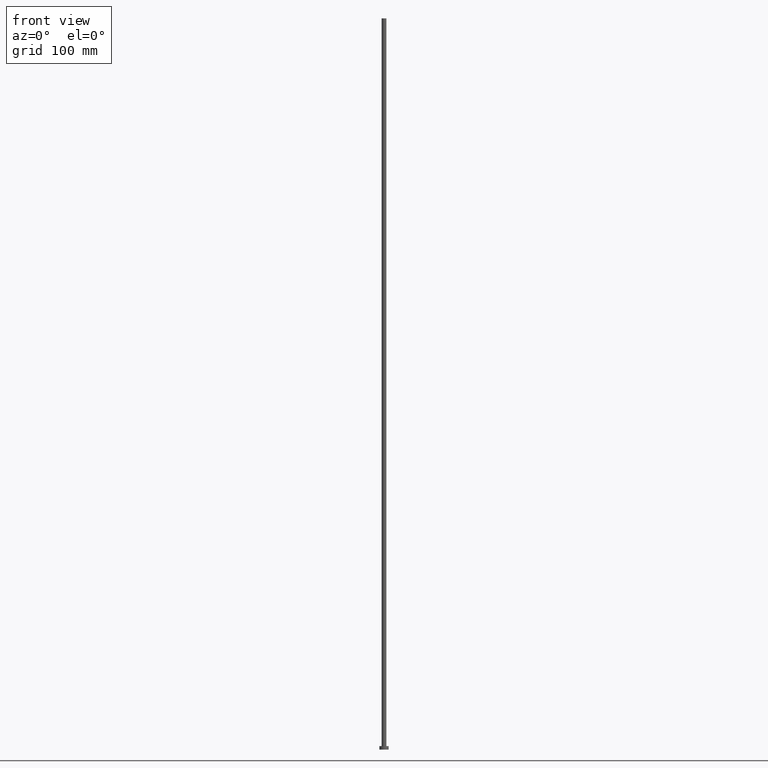
[diagram: clean part render]
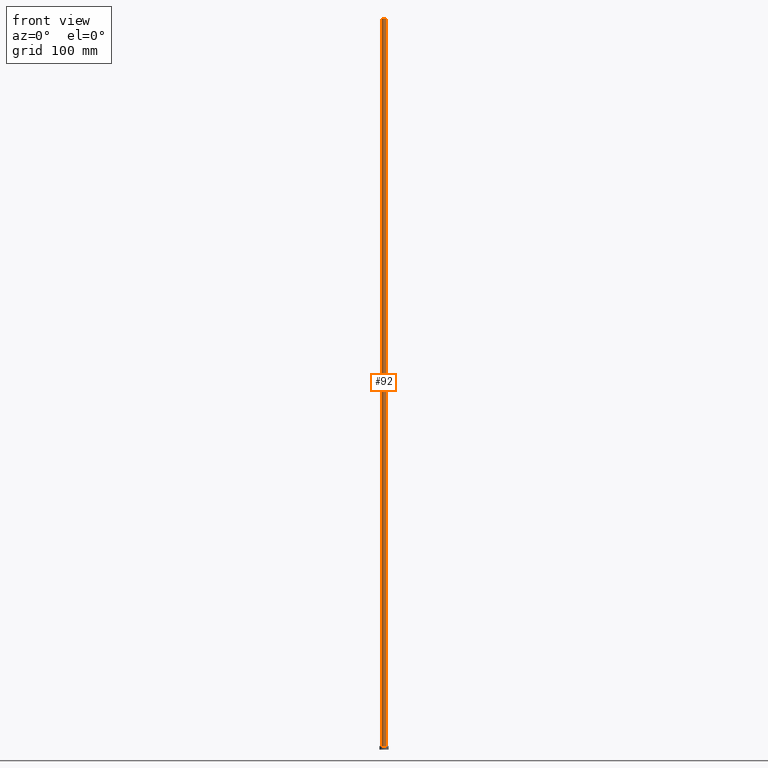
[diagram: same view with one face highlighted and labeled with its STEP entity id]
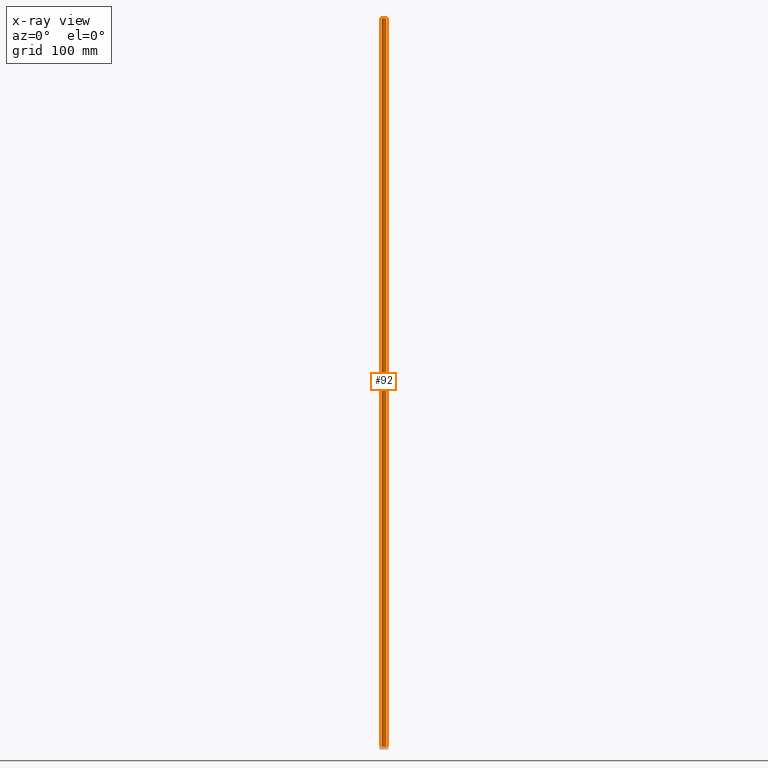
[diagram: x-ray of the same camera — body ghosted, the highlighted face saturated]
A machine part, front view. The second image highlights one B-rep face of the part: STEP entity #92.
The next image is the same camera in x-ray: the body ghosted, the highlighted face saturated — about 0% of this face is hidden behind the body in this view.
In plain terms, the highlighted cylindrical surface (edge-blend (fillet) strip) has radius 2 mm, axis along (-0, -0, -1).
Its self-contained STEP definition (entity closure, byte-faithful):
#7 = ORIENTED_EDGE ( 'NONE', *, *, #100, .T. ) ;
#11 = DIRECTION ( 'NONE',  ( -0.000000000000000000, -0.000000000000000000, -1.000000000000000000 ) ) ;
#16 = EDGE_CURVE ( 'NONE', #58, #156, #41, .T. ) ;
#22 = CIRCLE ( 'NONE', #186, 2.000000000000000000 ) ;
#33 = CARTESIAN_POINT ( 'NONE',  ( 0.000000000000000000, 0.000000000000000000, 630.0000000000000000 ) ) ;
#35 = CARTESIAN_POINT ( 'NONE',  ( 2.000000000000000000, 2.449293598294706414E-16, 630.0000000000000000 ) ) ;
#41 = CIRCLE ( 'NONE', #177, 2.000000000000000000 ) ;
#51 = CARTESIAN_POINT ( 'NONE',  ( -2.000000000000000000, 0.000000000000000000, 630.0000000000000000 ) ) ;
#58 = VERTEX_POINT ( 'NONE', #179 ) ;
#59 = DIRECTION ( 'NONE',  ( 1.000000000000000000, 0.000000000000000000, 0.000000000000000000 ) ) ;
#65 = DIRECTION ( 'NONE',  ( -1.000000000000000000, 0.000000000000000000, 0.000000000000000000 ) ) ;
#68 = CYLINDRICAL_SURFACE ( 'NONE', #231, 2.000000000000000000 ) ;
#91 = EDGE_CURVE ( 'NONE', #156, #97, #249, .T. ) ;
#92 = ADVANCED_FACE ( 'NONE', ( #103 ), #68, .T. ) ;
#97 = VERTEX_POINT ( 'NONE', #142 ) ;
#98 = VECTOR ( 'NONE', #101, 1000.000000000000000 ) ;
#100 = EDGE_CURVE ( 'NONE', #136, #97, #22, .T. ) ;
#101 = DIRECTION ( 'NONE',  ( -0.000000000000000000, -0.000000000000000000, -1.000000000000000000 ) ) ;
#103 = FACE_OUTER_BOUND ( 'NONE', #219, .T. ) ;
#105 = CARTESIAN_POINT ( 'NONE',  ( 2.000000000000000000, 2.449293598294706414E-16, 630.0000000000000000 ) ) ;
#111 = EDGE_CURVE ( 'NONE', #58, #136, #178, .T. ) ;
#136 = VERTEX_POINT ( 'NONE', #174 ) ;
#139 = DIRECTION ( 'NONE',  ( -0.000000000000000000, -0.000000000000000000, -1.000000000000000000 ) ) ;
#142 = CARTESIAN_POINT ( 'NONE',  ( 2.000000000000000000, 2.449293598294706414E-16, 3.000000000000000000 ) ) ;
#152 = CARTESIAN_POINT ( 'NONE',  ( 0.000000000000000000, 0.000000000000000000, 630.0000000000000000 ) ) ;
#156 = VERTEX_POINT ( 'NONE', #35 ) ;
#174 = CARTESIAN_POINT ( 'NONE',  ( -2.000000000000000000, 0.000000000000000000, 3.000000000000000000 ) ) ;
#177 = AXIS2_PLACEMENT_3D ( 'NONE', #152, #241, #59 ) ;
#178 = LINE ( 'NONE', #51, #98 ) ;
#179 = CARTESIAN_POINT ( 'NONE',  ( -2.000000000000000000, 0.000000000000000000, 630.0000000000000000 ) ) ;
#186 = AXIS2_PLACEMENT_3D ( 'NONE', #207, #228, #248 ) ;
#193 = ORIENTED_EDGE ( 'NONE', *, *, #91, .F. ) ;
#200 = ORIENTED_EDGE ( 'NONE', *, *, #111, .T. ) ;
#205 = VECTOR ( 'NONE', #139, 1000.000000000000000 ) ;
#207 = CARTESIAN_POINT ( 'NONE',  ( 0.000000000000000000, 0.000000000000000000, 3.000000000000000000 ) ) ;
#217 = ORIENTED_EDGE ( 'NONE', *, *, #16, .F. ) ;
#219 = EDGE_LOOP ( 'NONE', ( #193, #217, #200, #7 ) ) ;
#228 = DIRECTION ( 'NONE',  ( 0.000000000000000000, 0.000000000000000000, 1.000000000000000000 ) ) ;
#231 = AXIS2_PLACEMENT_3D ( 'NONE', #33, #11, #65 ) ;
#241 = DIRECTION ( 'NONE',  ( 0.000000000000000000, 0.000000000000000000, 1.000000000000000000 ) ) ;
#248 = DIRECTION ( 'NONE',  ( 1.000000000000000000, 0.000000000000000000, 0.000000000000000000 ) ) ;
#249 = LINE ( 'NONE', #105, #205 ) ;